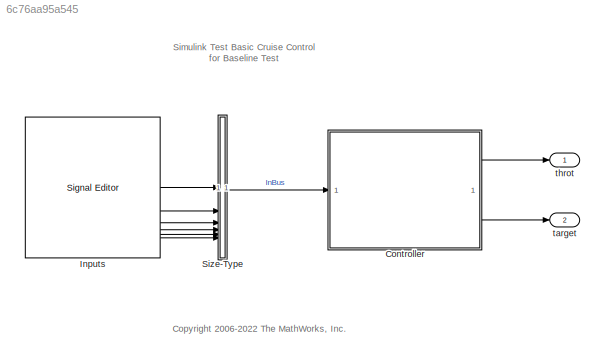
MODEL slx_6c76aa95a545
KIND model
CONFIG AbsTol = auto
CONFIG EnableMultiTasking = on
CONFIG FixedStep = 0.01
CONFIG MaxStep = auto
CONFIG MinStep = auto
CONFIG PostLoadFcn = load('sltest_cruise_control_hierbus.mat');
CONFIG RelTol = 1e-3
CONFIG SampleTimeConstraint = Unconstrained
CONFIG SolverName = FixedStepDiscrete
CONFIG StartTime = 0.0
CONFIG StopTime = 1
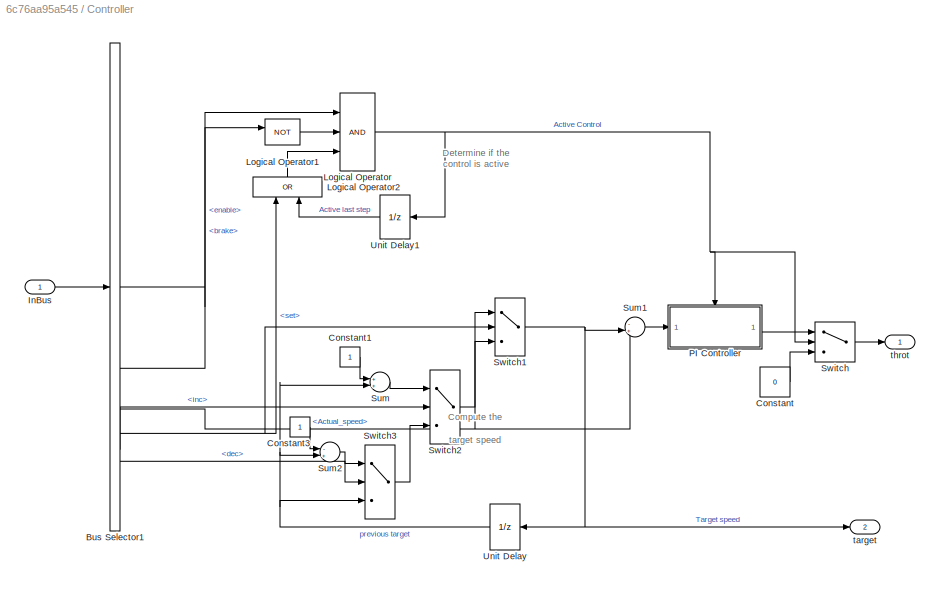
BLOCK [SubSystem] Controller
BLOCK [BusSelector] Controller/Bus Selector1
  OutputSignals = Switches.enable,Switches.brake,Actual_speed,Switches.set,Switches.setIncDec.inc,Switches.setIncDec.dec
BLOCK [Constant] Controller/Constant
  Value = 0
BLOCK [Constant] Controller/Constant1
BLOCK [Constant] Controller/Constant3
BLOCK [Inport] Controller/InBus
  OutDataTypeStr = Bus: InputBus
BLOCK [Logic] Controller/Logical Operator
  AllPortsSameDT = off
  Inputs = 3
  OutDataTypeStr = boolean
BLOCK [Logic] Controller/Logical Operator1
  AllPortsSameDT = off
  Operator = NOT
  OutDataTypeStr = boolean
BLOCK [Logic] Controller/Logical Operator2
  AllPortsSameDT = off
  Operator = OR
  OutDataTypeStr = boolean
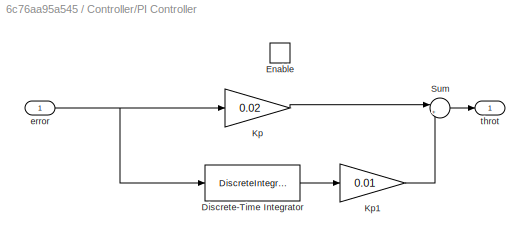
BLOCK [SubSystem] Controller/PI Controller
BLOCK [DiscreteIntegrator] Controller/PI Controller/Discrete-Time Integrator
  ICPrevOutput = DiscIntNeverNeededParam
  ICPrevScaledInput = DiscIntNeverNeededParam
  LimitOutput = on
  LowerSaturationLimit = -5
  SampleTime = 0.01
  UpperSaturationLimit = 5
BLOCK [EnablePort] Controller/PI Controller/Enable
  PropagateVarSize = During execution
BLOCK [Gain] Controller/PI Controller/Kp
  Gain = 0.02
BLOCK [Gain] Controller/PI Controller/Kp1
  Gain = 0.01
BLOCK [Sum] Controller/PI Controller/Sum
  Inputs = |++
BLOCK [Inport] Controller/PI Controller/error
BLOCK [Outport] Controller/PI Controller/throt
  InitialOutput = 0
  VectorParamsAs1DForOutWhenUnconnected = off
BLOCK [Sum] Controller/Sum
  Inputs = ++|
BLOCK [Sum] Controller/Sum1
  Inputs = -+|
BLOCK [Sum] Controller/Sum2
  Inputs = -+|
BLOCK [Switch] Controller/Switch
  Criteria = u2 ~= 0
  InputSameDT = off
  SaturateOnIntegerOverflow = off
BLOCK [Switch] Controller/Switch1
  Criteria = u2 ~= 0
  InputSameDT = off
  SaturateOnIntegerOverflow = off
BLOCK [Switch] Controller/Switch2
  Criteria = u2 ~= 0
  InputSameDT = off
  SaturateOnIntegerOverflow = off
BLOCK [Switch] Controller/Switch3
  Criteria = u2 ~= 0
  InputSameDT = off
  SaturateOnIntegerOverflow = off
BLOCK [UnitDelay] Controller/Unit Delay
  HasFrameUpgradeWarning = on
  NameLocation = top
  SampleTime = 0.01
BLOCK [UnitDelay] Controller/Unit Delay1
  HasFrameUpgradeWarning = on
  NameLocation = top
  SampleTime = 0.01
BLOCK [Outport] Controller/target
  Port = 2
  VectorParamsAs1DForOutWhenUnconnected = off
BLOCK [Outport] Controller/throt
  VectorParamsAs1DForOutWhenUnconnected = off
BLOCK [Reference] Inputs  REF=SignalEditorBlockLib/Signal Editor
  SourceBlock = SignalEditorBlockLib/Signal Editor
  SourceType = SignalEditor
  UserDataPersistent = on
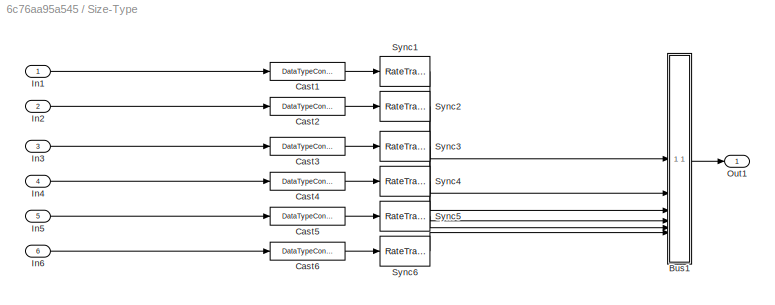
BLOCK [SubSystem] Size-Type
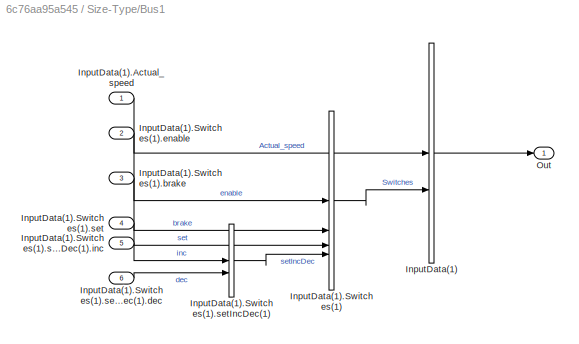
BLOCK [SubSystem] Size-Type/Bus1
BLOCK [BusCreator] Size-Type/Bus1/InputData(1)
  InheritFromInputs = on
  Inputs = 2
  NonVirtualBus = on
  OutDataTypeStr = Bus: InputBus
BLOCK [Inport] Size-Type/Bus1/InputData(1).Actual_speed
  NameLocation = top
BLOCK [BusCreator] Size-Type/Bus1/InputData(1).Switches(1)
  InheritFromInputs = on
  Inputs = 4
  NonVirtualBus = on
  OutDataTypeStr = Bus: Switches
BLOCK [Inport] Size-Type/Bus1/InputData(1).Switches(1).brake
  NameLocation = top
  Port = 3
BLOCK [Inport] Size-Type/Bus1/InputData(1).Switches(1).enable
  NameLocation = top
  Port = 2
BLOCK [Inport] Size-Type/Bus1/InputData(1).Switches(1).set
  NameLocation = top
  Port = 4
BLOCK [BusCreator] Size-Type/Bus1/InputData(1).Switches(1).setIncDec(1)
  InheritFromInputs = on
  Inputs = 2
  NonVirtualBus = on
  OutDataTypeStr = Bus: setpoint
BLOCK [Inport] Size-Type/Bus1/InputData(1).Switches(1).setIncDec(1).dec
  NameLocation = top
  Port = 6
BLOCK [Inport] Size-Type/Bus1/InputData(1).Switches(1).setIncDec(1).inc
  NameLocation = top
  Port = 5
BLOCK [Outport] Size-Type/Bus1/Out
  VectorParamsAs1DForOutWhenUnconnected = off
BLOCK [DataTypeConversion] Size-Type/Cast1
  OutDataTypeStr = double
  RndMeth = Nearest
BLOCK [DataTypeConversion] Size-Type/Cast2
  OutDataTypeStr = boolean
  RndMeth = Nearest
BLOCK [DataTypeConversion] Size-Type/Cast3
  OutDataTypeStr = boolean
  RndMeth = Nearest
BLOCK [DataTypeConversion] Size-Type/Cast4
  OutDataTypeStr = boolean
  RndMeth = Nearest
BLOCK [DataTypeConversion] Size-Type/Cast5
  OutDataTypeStr = boolean
  RndMeth = Nearest
BLOCK [DataTypeConversion] Size-Type/Cast6
  OutDataTypeStr = boolean
  RndMeth = Nearest
BLOCK [Inport] Size-Type/In1
BLOCK [Inport] Size-Type/In2
  Port = 2
BLOCK [Inport] Size-Type/In3
  Port = 3
BLOCK [Inport] Size-Type/In4
  Port = 4
BLOCK [Inport] Size-Type/In5
  Port = 5
BLOCK [Inport] Size-Type/In6
  Port = 6
BLOCK [Outport] Size-Type/Out1
  VectorParamsAs1DForOutWhenUnconnected = off
BLOCK [RateTransition] Size-Type/Sync1
  OutPortSampleTime = [0.01,0]
BLOCK [RateTransition] Size-Type/Sync2
  OutPortSampleTime = [0.01,0]
BLOCK [RateTransition] Size-Type/Sync3
  OutPortSampleTime = [0.01,0]
BLOCK [RateTransition] Size-Type/Sync4
  OutPortSampleTime = [0.01,0]
BLOCK [RateTransition] Size-Type/Sync5
  OutPortSampleTime = [0.01,0]
BLOCK [RateTransition] Size-Type/Sync6
  OutPortSampleTime = [0.01,0]
BLOCK [Outport] target
  Port = 2
  VectorParamsAs1DForOutWhenUnconnected = off
BLOCK [Outport] throt
  VectorParamsAs1DForOutWhenUnconnected = off
ANNOTATION (root): <copyright redacted>
ANNOTATION (root): Simulink Test Basic Cruise Control for Baseline Test
ANNOTATION Controller: Compute the target speed
ANNOTATION Controller: Determine if the control is active
LINE Controller/Bus Selector1:1 -> Controller/Logical Operator:1
LINE Controller/Bus Selector1:2 -> Controller/Logical Operator1:1
NET Controller/Bus Selector1:3 -> Controller/Sum1:1, Controller/Switch1:1
NET Controller/Bus Selector1:4 -> Controller/Logical Operator2:1, Controller/Switch1:2
LINE Controller/Bus Selector1:5 -> Controller/Switch2:2
LINE Controller/Bus Selector1:6 -> Controller/Switch3:2
LINE Controller/Constant1:1 -> Controller/Sum:1
LINE Controller/Constant3:1 -> Controller/Sum2:1
LINE Controller/Constant:1 -> Controller/Switch:3
LINE Controller/InBus:1 -> Controller/Bus Selector1:1
LINE Controller/Logical Operator1:1 -> Controller/Logical Operator:2
LINE Controller/Logical Operator2:1 -> Controller/Logical Operator:3
NET Controller/Logical Operator:1 -> Controller/PI Controller:enable, Controller/Switch:2, Controller/Unit Delay1:1
LINE Controller/PI Controller/Discrete-Time Integrator:1 -> Controller/PI Controller/Kp1:1
LINE Controller/PI Controller/Kp1:1 -> Controller/PI Controller/Sum:2
LINE Controller/PI Controller/Kp:1 -> Controller/PI Controller/Sum:1
LINE Controller/PI Controller/Sum:1 -> Controller/PI Controller/throt:1
NET Controller/PI Controller/error:1 -> Controller/PI Controller/Discrete-Time Integrator:1, Controller/PI Controller/Kp:1
LINE Controller/PI Controller:1 -> Controller/Switch:1
LINE Controller/Sum1:1 -> Controller/PI Controller:1
LINE Controller/Sum2:1 -> Controller/Switch3:1
LINE Controller/Sum:1 -> Controller/Switch2:1
NET Controller/Switch1:1 -> Controller/Sum1:2, Controller/Unit Delay:1, Controller/target:1
LINE Controller/Switch2:1 -> Controller/Switch1:3
LINE Controller/Switch3:1 -> Controller/Switch2:3
LINE Controller/Switch:1 -> Controller/throt:1
LINE Controller/Unit Delay1:1 -> Controller/Logical Operator2:2
NET Controller/Unit Delay:1 -> Controller/Sum2:2, Controller/Sum:2, Controller/Switch3:3
LINE Controller:1 -> throt:1
LINE Controller:2 -> target:1
LINE Inputs:1 -> Size-Type:1
LINE Inputs:2 -> Size-Type:2
LINE Inputs:3 -> Size-Type:3
LINE Inputs:4 -> Size-Type:4
LINE Inputs:5 -> Size-Type:5
LINE Inputs:6 -> Size-Type:6
LINE Size-Type/Bus1/InputData(1).Actual_speed:1 -> Size-Type/Bus1/InputData(1):1
LINE Size-Type/Bus1/InputData(1).Switches(1).brake:1 -> Size-Type/Bus1/InputData(1).Switches(1):2
LINE Size-Type/Bus1/InputData(1).Switches(1).enable:1 -> Size-Type/Bus1/InputData(1).Switches(1):1
LINE Size-Type/Bus1/InputData(1).Switches(1).set:1 -> Size-Type/Bus1/InputData(1).Switches(1):3
LINE Size-Type/Bus1/InputData(1).Switches(1).setIncDec(1).dec:1 -> Size-Type/Bus1/InputData(1).Switches(1).setIncDec(1):2
LINE Size-Type/Bus1/InputData(1).Switches(1).setIncDec(1).inc:1 -> Size-Type/Bus1/InputData(1).Switches(1).setIncDec(1):1
LINE Size-Type/Bus1/InputData(1).Switches(1).setIncDec(1):1 -> Size-Type/Bus1/InputData(1).Switches(1):4
LINE Size-Type/Bus1/InputData(1).Switches(1):1 -> Size-Type/Bus1/InputData(1):2
LINE Size-Type/Bus1/InputData(1):1 -> Size-Type/Bus1/Out:1
LINE Size-Type/Bus1:1 -> Size-Type/Out1:1
LINE Size-Type/Cast1:1 -> Size-Type/Sync1:1
LINE Size-Type/Cast2:1 -> Size-Type/Sync2:1
LINE Size-Type/Cast3:1 -> Size-Type/Sync3:1
LINE Size-Type/Cast4:1 -> Size-Type/Sync4:1
LINE Size-Type/Cast5:1 -> Size-Type/Sync5:1
LINE Size-Type/Cast6:1 -> Size-Type/Sync6:1
LINE Size-Type/In1:1 -> Size-Type/Cast1:1
LINE Size-Type/In2:1 -> Size-Type/Cast2:1
LINE Size-Type/In3:1 -> Size-Type/Cast3:1
LINE Size-Type/In4:1 -> Size-Type/Cast4:1
LINE Size-Type/In5:1 -> Size-Type/Cast5:1
LINE Size-Type/In6:1 -> Size-Type/Cast6:1
LINE Size-Type/Sync1:1 -> Size-Type/Bus1:1
LINE Size-Type/Sync2:1 -> Size-Type/Bus1:2
LINE Size-Type/Sync3:1 -> Size-Type/Bus1:3
LINE Size-Type/Sync4:1 -> Size-Type/Bus1:4
LINE Size-Type/Sync5:1 -> Size-Type/Bus1:5
LINE Size-Type/Sync6:1 -> Size-Type/Bus1:6
LINE Size-Type:1 -> Controller:1
note: NET lines group one-source signal fan-out (src -> all destinations, sorted); 1:1 wires keep LINE
